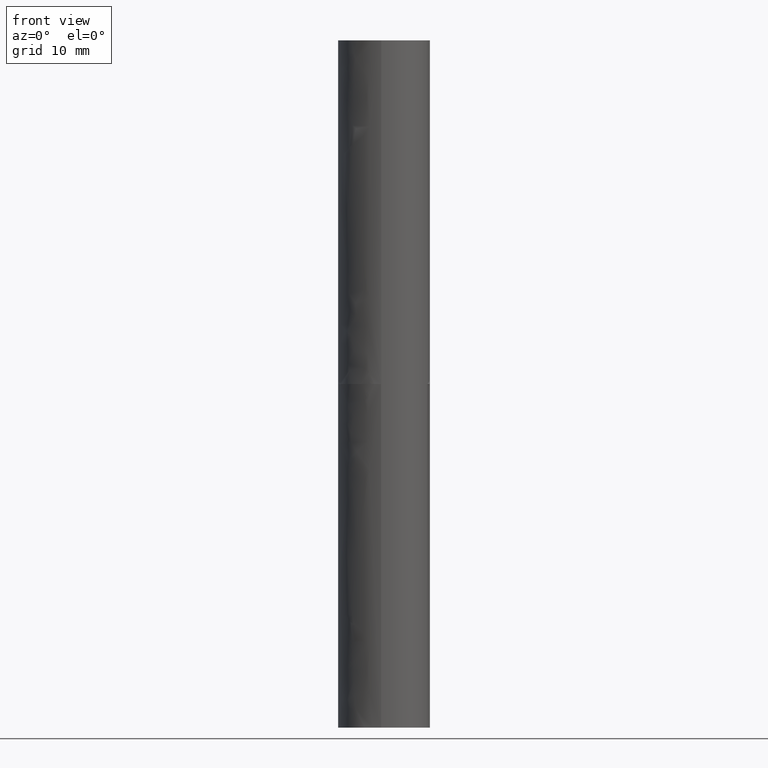
[diagram: clean part render]
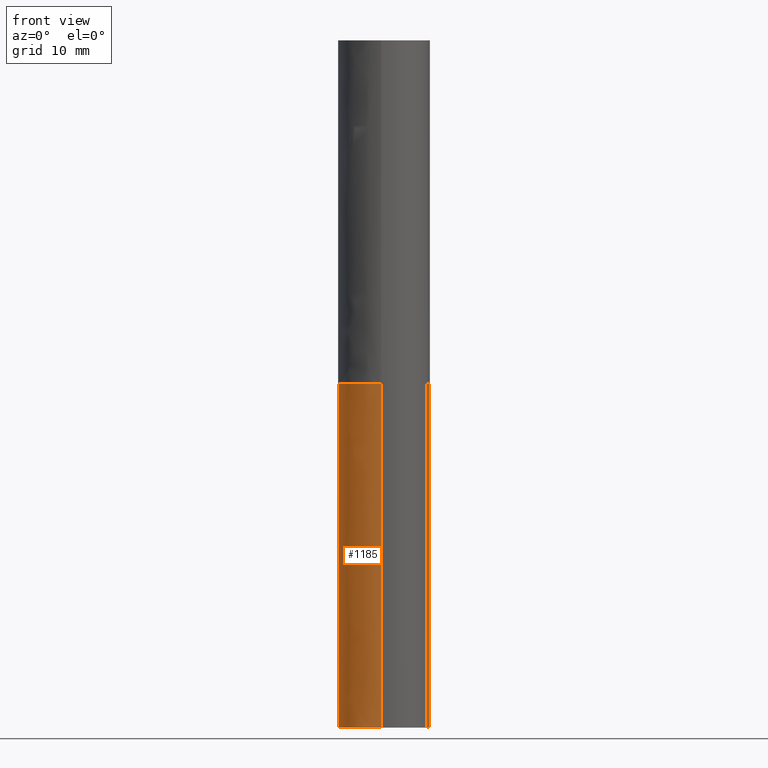
[diagram: same view with one face highlighted and labeled with its STEP entity id]
A machine part, front view. The second image highlights one B-rep face of the part: STEP entity #1185.
In plain terms, the highlighted face is a freeform B-spline surface patch.
Its self-contained STEP definition (entity closure, byte-faithful):
#991=CARTESIAN_POINT('',(5.614089157048511,-2.117076116665441,-1.125000053434523));
#992=CARTESIAN_POINT('',(5.932118495476550,-1.273721440922523,-1.125000053434523));
#993=CARTESIAN_POINT('',(5.988323379805474,-0.374148886774727,-1.125000053434523));
#994=CARTESIAN_POINT('',(6.362471102892700,5.614174493030747,-1.125000053434523));
#995=CARTESIAN_POINT('',(0.374147723087227,5.988322216117973,-1.125000053434523));
#996=CARTESIAN_POINT('',(-5.614175656718248,6.362469939205200,-1.125000053434523));
#997=CARTESIAN_POINT('',(-5.988323379805474,0.374146559399727,-1.125000053434523));
#998=CARTESIAN_POINT('',(-6.362471102892700,-5.614176820405747,-1.125000053434523));
#999=CARTESIAN_POINT('',(-0.374147723087227,-5.988324543492974,-1.125000053434523));
#1000=CARTESIAN_POINT('',(5.614089157048511,-2.117076116665441,46.153127192155914));
#1001=CARTESIAN_POINT('',(5.932118495476550,-1.273721440922523,46.153127192155907));
#1002=CARTESIAN_POINT('',(5.988323379805474,-0.374148886774727,46.153127192155907));
#1003=CARTESIAN_POINT('',(6.362471102892700,5.614174493030747,46.153127192155893));
#1004=CARTESIAN_POINT('',(0.374147723087227,5.988322216117973,46.153127192155907));
#1005=CARTESIAN_POINT('',(-5.614175656718248,6.362469939205200,46.153127192155893));
#1006=CARTESIAN_POINT('',(-5.988323379805474,0.374146559399727,46.153127192155907));
#1007=CARTESIAN_POINT('',(-6.362471102892700,-5.614176820405747,46.153127192155893));
#1008=CARTESIAN_POINT('',(-0.374147723087227,-5.988324543492974,46.153127192155907));
#1016=(BOUNDED_SURFACE()B_SPLINE_SURFACE(2,1,((#991,#1000),(#992,#1001),(#993,#1002),(#994,#1003),(#995,#1004),(#996,#1005),(#997,#1006),(#998,#1007),(#999,#1008)),.UNSPECIFIED.,.F.,.F.,.U.)B_SPLINE_SURFACE_WITH_KNOTS((3,2,2,2,3),(2,2),(0.0,1.988225193826471,11.929351162958829,21.870477132091182,31.811603101223540),(0.0,47.278127245590433),.UNSPECIFIED.)GEOMETRIC_REPRESENTATION_ITEM()RATIONAL_B_SPLINE_SURFACE(((0.906274169979695,0.906274169979695),(0.941421356237309,0.941421356237309),(1.0,1.0),(0.707106781186548,0.707106781186548),(1.0,1.0),(0.707106781186548,0.707106781186548),(1.0,1.0),(0.707106781186548,0.707106781186548),(1.0,1.0)))REPRESENTATION_ITEM('')SURFACE());
#1017=CARTESIAN_POINT('',(5.614090357532025,-2.117071947518318,45.000002137385387));
#1018=VERTEX_POINT('',#1017);
#1019=CARTESIAN_POINT('',(5.999999999999901,0.0,45.000002137385401));
#1020=VERTEX_POINT('',#1019);
#1021=CARTESIAN_POINT('',(5.614090357532024,-2.117071947518318,45.000002137385387));
#1022=CARTESIAN_POINT('',(5.999999999999902,-1.093708668840243,45.000002137385401));
#1023=CARTESIAN_POINT('',(5.999999999999901,0.0,45.000002137385401));
#1031=(BOUNDED_CURVE()B_SPLINE_CURVE(2,(#1021,#1022,#1023),.UNSPECIFIED.,.F.,.U.)B_SPLINE_CURVE_WITH_KNOTS((3,3),(0.940077069179168,1.0),.UNSPECIFIED.)CURVE()GEOMETRIC_REPRESENTATION_ITEM()RATIONAL_B_SPLINE_CURVE((0.893246513293018,0.929795919644602,1.0))REPRESENTATION_ITEM(''));
#1032=EDGE_CURVE('',#1018,#1020,#1031,.T.);
#1033=ORIENTED_EDGE('',*,*,#1032,.F.);
#1034=CARTESIAN_POINT('',(5.614089157047637,-2.117076116667763,1.092905E-013));
#1035=VERTEX_POINT('',#1034);
#1036=CARTESIAN_POINT('',(5.614089157047637,-2.117076116667763,1.092905E-013));
#1037=CARTESIAN_POINT('',(5.614090357532025,-2.117071947518318,45.000002137385387));
#1038=QUASI_UNIFORM_CURVE('',1,(#1036,#1037),.UNSPECIFIED.,.F.,.U.);
#1039=EDGE_CURVE('',#1035,#1018,#1038,.T.);
#1040=ORIENTED_EDGE('',*,*,#1039,.F.);
#1041=CARTESIAN_POINT('',(6.000000284984660,-0.000000674925422,1.110223E-013));
#1042=VERTEX_POINT('',#1041);
#1043=CARTESIAN_POINT('',(5.614089157047637,-2.117076116667763,1.092905E-013));
#1044=CARTESIAN_POINT('',(6.000000374078703,-1.093711319845359,1.110223E-013));
#1045=CARTESIAN_POINT('',(6.000000284984660,-0.000000674925424,1.110223E-013));
#1053=(BOUNDED_CURVE()B_SPLINE_CURVE(2,(#1043,#1044,#1045),.UNSPECIFIED.,.F.,.U.)B_SPLINE_CURVE_WITH_KNOTS((3,3),(0.884135779717918,1.0),.UNSPECIFIED.)CURVE()GEOMETRIC_REPRESENTATION_ITEM()RATIONAL_B_SPLINE_CURVE((0.939236618780004,0.953431408896462,1.0))REPRESENTATION_ITEM(''));
#1054=EDGE_CURVE('',#1035,#1042,#1053,.T.);
#1055=ORIENTED_EDGE('',*,*,#1054,.T.);
#1056=CARTESIAN_POINT('',(5.999999999999901,0.0,44.500002113636803));
#1057=VERTEX_POINT('',#1056);
#1058=CARTESIAN_POINT('',(6.000000284984660,-0.000000674925422,1.110223E-013));
#1059=CARTESIAN_POINT('',(5.999999999999901,0.0,44.500002113636803));
#1060=QUASI_UNIFORM_CURVE('',1,(#1058,#1059),.UNSPECIFIED.,.F.,.U.);
#1061=EDGE_CURVE('',#1042,#1057,#1060,.T.);
#1062=ORIENTED_EDGE('',*,*,#1061,.T.);
#1063=CARTESIAN_POINT('',(2.142857302847090,5.604297721940490,44.500002113636803));
#1064=VERTEX_POINT('',#1063);
#1065=CARTESIAN_POINT('',(5.999999999999901,0.0,44.500002113636803));
#1066=CARTESIAN_POINT('',(5.999999999999902,4.129482857516673,44.500002113636796));
#1067=CARTESIAN_POINT('',(2.142857302847090,5.604297721940490,44.500002113636803));
#1075=(BOUNDED_CURVE()B_SPLINE_CURVE(2,(#1065,#1066,#1067),.UNSPECIFIED.,.F.,.U.)CURVE()GEOMETRIC_REPRESENTATION_ITEM()QUASI_UNIFORM_CURVE()RATIONAL_B_SPLINE_CURVE((1.0,0.823754493627631,1.0))REPRESENTATION_ITEM(''));
#1076=EDGE_CURVE('',#1057,#1064,#1075,.T.);
#1077=ORIENTED_EDGE('',*,*,#1076,.T.);
#1078=CARTESIAN_POINT('',(2.142857589260475,5.604298471008519,39.500002113636697));
#1079=VERTEX_POINT('',#1078);
#1080=CARTESIAN_POINT('',(2.142857302847090,5.604297721940490,44.500002113636803));
#1081=CARTESIAN_POINT('',(2.142857589260475,5.604298471008519,39.500002113636697));
#1082=QUASI_UNIFORM_CURVE('',1,(#1080,#1081),.UNSPECIFIED.,.F.,.U.);
#1083=EDGE_CURVE('',#1064,#1079,#1082,.T.);
#1084=ORIENTED_EDGE('',*,*,#1083,.T.);
#1085=CARTESIAN_POINT('',(-2.142857589263040,5.604298471007610,39.500002113636697));
#1086=VERTEX_POINT('',#1085);
#1087=CARTESIAN_POINT('',(2.142857589260474,5.604298471008514,39.500002113636697));
#1088=CARTESIAN_POINT('',(-1.456463E-012,6.423640744017079,39.500002113636704));
#1089=CARTESIAN_POINT('',(-2.142857589263040,5.604298471007609,39.500002113636697));
#1097=(BOUNDED_CURVE()B_SPLINE_CURVE(2,(#1087,#1088,#1089),.UNSPECIFIED.,.F.,.U.)CURVE()GEOMETRIC_REPRESENTATION_ITEM()QUASI_UNIFORM_CURVE()RATIONAL_B_SPLINE_CURVE((1.0,0.934049745168010,1.0))REPRESENTATION_ITEM(''));
#1098=EDGE_CURVE('',#1079,#1086,#1097,.T.);
#1099=ORIENTED_EDGE('',*,*,#1098,.T.);
#1100=CARTESIAN_POINT('',(-2.142857589263040,5.604298471007610,44.500002113636803));
#1101=VERTEX_POINT('',#1100);
#1102=CARTESIAN_POINT('',(-2.142857589263040,5.604298471007610,39.500002113636697));
#1103=CARTESIAN_POINT('',(-2.142857589263040,5.604298471007610,44.500002113636803));
#1104=QUASI_UNIFORM_CURVE('',1,(#1102,#1103),.UNSPECIFIED.,.F.,.U.);
#1105=EDGE_CURVE('',#1086,#1101,#1104,.T.);
#1106=ORIENTED_EDGE('',*,*,#1105,.T.);
#1107=CARTESIAN_POINT('',(-6.000000284984790,-0.000000674925502,44.500002113636697));
#1108=VERTEX_POINT('',#1107);
#1109=CARTESIAN_POINT('',(-2.142857589263040,5.604298471007609,44.500002113636803));
#1110=CARTESIAN_POINT('',(-6.000000464515644,4.129482679902807,44.500002113636796));
#1111=CARTESIAN_POINT('',(-6.000000284984790,-0.000000674925502,44.500002113636697));
#1119=(BOUNDED_CURVE()B_SPLINE_CURVE(2,(#1109,#1110,#1111),.UNSPECIFIED.,.F.,.U.)CURVE()GEOMETRIC_REPRESENTATION_ITEM()QUASI_UNIFORM_CURVE()RATIONAL_B_SPLINE_CURVE((1.0,0.823754461740520,1.0))REPRESENTATION_ITEM(''));
#1120=EDGE_CURVE('',#1101,#1108,#1119,.T.);
#1121=ORIENTED_EDGE('',*,*,#1120,.T.);
#1122=CARTESIAN_POINT('',(-6.000000284984790,-0.000000674925502,1.110223E-013));
#1123=VERTEX_POINT('',#1122);
#1124=CARTESIAN_POINT('',(-6.000000284984790,-0.000000674925502,1.110223E-013));
#1125=CARTESIAN_POINT('',(-6.000000284984790,-0.000000674925502,44.500002113636697));
#1126=QUASI_UNIFORM_CURVE('',1,(#1124,#1125),.UNSPECIFIED.,.F.,.U.);
#1127=EDGE_CURVE('',#1123,#1108,#1126,.T.);
#1128=ORIENTED_EDGE('',*,*,#1127,.F.);
#1129=CARTESIAN_POINT('',(-0.374150717667246,-5.988324356391473,1.120215E-013));
#1130=VERTEX_POINT('',#1129);
#1131=CARTESIAN_POINT('',(-6.000000284984790,-0.000000674925502,1.110223E-013));
#1132=CARTESIAN_POINT('',(-6.000000567171551,-3.464102671826800,1.110223E-013));
#1133=CARTESIAN_POINT('',(-3.000000283585754,-5.196153751737782,1.110223E-013));
#1134=CARTESIAN_POINT('',(-1.780066932640909,-5.900482644466372,1.110223E-013));
#1135=CARTESIAN_POINT('',(-0.374150717667246,-5.988324356391473,1.120215E-013));
#1143=(BOUNDED_CURVE()B_SPLINE_CURVE(2,(#1131,#1132,#1133,#1134,#1135),.UNSPECIFIED.,.F.,.U.)B_SPLINE_CURVE_WITH_KNOTS((3,2,3),(0.0,0.333333333333333,0.480587368828926),.UNSPECIFIED.)CURVE()GEOMETRIC_REPRESENTATION_ITEM()RATIONAL_B_SPLINE_CURVE((1.0,0.866025390207716,1.0,0.940815094162416,0.933921485674898))REPRESENTATION_ITEM(''));
#1144=EDGE_CURVE('',#1123,#1130,#1143,.T.);
#1145=ORIENTED_EDGE('',*,*,#1144,.T.);
#1146=CARTESIAN_POINT('',(-0.374147678129658,-5.988323821687964,45.000002137385408));
#1147=VERTEX_POINT('',#1146);
#1148=CARTESIAN_POINT('',(-0.374150717667246,-5.988324356391473,1.120215E-013));
#1149=CARTESIAN_POINT('',(-0.374147678129658,-5.988323821687964,45.000002137385408));
#1150=QUASI_UNIFORM_CURVE('',1,(#1148,#1149),.UNSPECIFIED.,.F.,.U.);
#1151=EDGE_CURVE('',#1130,#1147,#1150,.T.);
#1152=ORIENTED_EDGE('',*,*,#1151,.T.);
#1153=CARTESIAN_POINT('',(-6.000000000000100,0.0,45.000002137385401));
#1154=VERTEX_POINT('',#1153);
#1155=CARTESIAN_POINT('',(-6.000000000000100,0.0,45.000002137385401));
#1156=CARTESIAN_POINT('',(-6.000000000000100,-5.636822468985972,45.000002137385387));
#1157=CARTESIAN_POINT('',(-0.374147678129658,-5.988323821687964,45.000002137385401));
#1165=(BOUNDED_CURVE()B_SPLINE_CURVE(2,(#1155,#1156,#1157),.UNSPECIFIED.,.F.,.U.)B_SPLINE_CURVE_WITH_KNOTS((3,3),(0.500000000000000,0.739106654456283),.UNSPECIFIED.)CURVE()GEOMETRIC_REPRESENTATION_ITEM()RATIONAL_B_SPLINE_CURVE((1.0,0.719869129346334,0.975587501028057))REPRESENTATION_ITEM(''));
#1166=EDGE_CURVE('',#1154,#1147,#1165,.T.);
#1167=ORIENTED_EDGE('',*,*,#1166,.F.);
#1168=CARTESIAN_POINT('',(5.999999999999901,0.0,45.000002137385401));
#1169=CARTESIAN_POINT('',(5.999999999999900,6.0,45.000002137385394));
#1170=CARTESIAN_POINT('',(-9.947598E-014,6.0,45.000002137385401));
#1171=CARTESIAN_POINT('',(-6.000000000000100,6.0,45.000002137385394));
#1172=CARTESIAN_POINT('',(-6.000000000000100,0.0,45.000002137385401));
#1180=(BOUNDED_CURVE()B_SPLINE_CURVE(2,(#1168,#1169,#1170,#1171,#1172),.UNSPECIFIED.,.F.,.U.)B_SPLINE_CURVE_WITH_KNOTS((3,2,3),(0.0,0.250000000000000,0.500000000000000),.UNSPECIFIED.)CURVE()GEOMETRIC_REPRESENTATION_ITEM()RATIONAL_B_SPLINE_CURVE((1.0,0.707106781186548,1.0,0.707106781186548,1.0))REPRESENTATION_ITEM(''));
#1181=EDGE_CURVE('',#1020,#1154,#1180,.T.);
#1182=ORIENTED_EDGE('',*,*,#1181,.F.);
#1183=EDGE_LOOP('',(#1033,#1040,#1055,#1062,#1077,#1084,#1099,#1106,#1121,#1128,#1145,#1152,#1167,#1182));
#1184=FACE_OUTER_BOUND('',#1183,.T.);
#1185=ADVANCED_FACE('',(#1184),#1016,.T.);